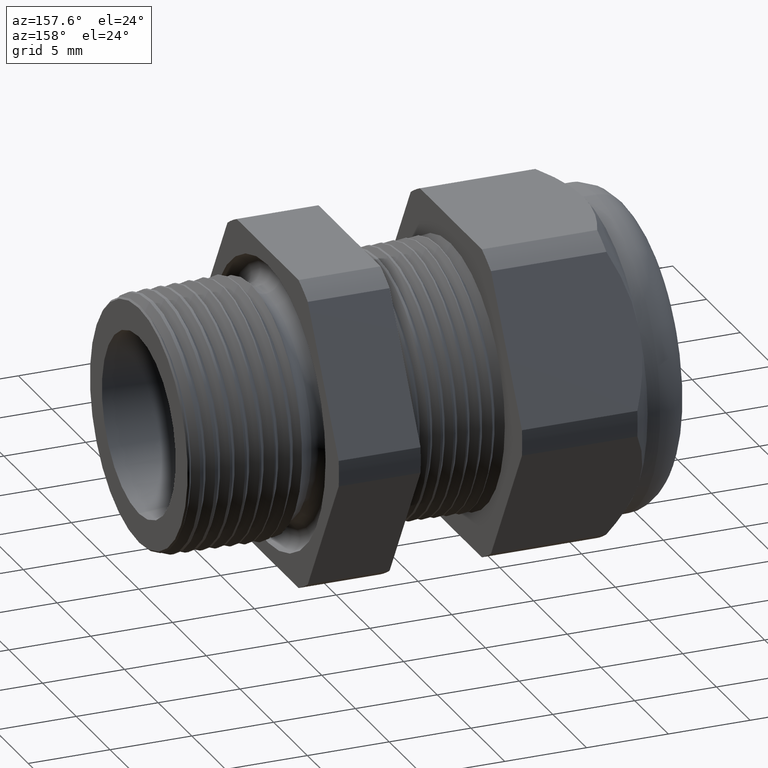
[diagram: clean part render]
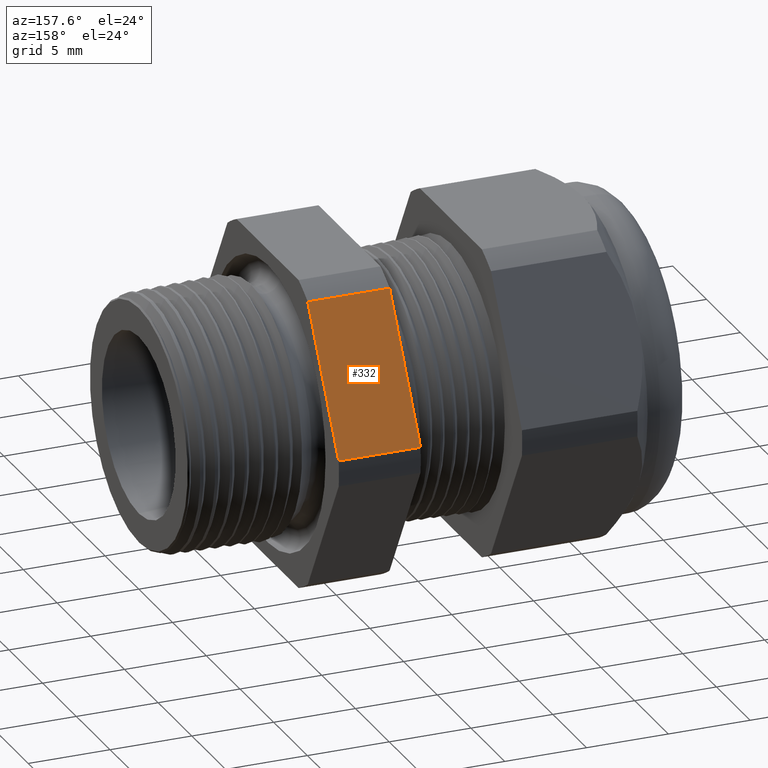
[diagram: same view with one face highlighted and labeled with its STEP entity id]
A machine part, auxiliary view. The second image highlights one B-rep face of the part: STEP entity #332.
In plain terms, the highlighted planar face has unit normal (0, 0.866, 0.5).
Its self-contained STEP definition (entity closure, byte-faithful):
#275 = EDGE_CURVE ( 'NONE', #4284, #276, #1935, .T. ) ;
#276 = VERTEX_POINT ( 'NONE', #1931 ) ;
#332 = ADVANCED_FACE ( 'NONE', ( #2038 ), #2037, .T. ) ;
#333 = EDGE_LOOP ( 'NONE', ( #334, #335, #336, #339 ) ) ;
#334 = ORIENTED_EDGE ( 'NONE', *, *, #275, .F. ) ;
#335 = ORIENTED_EDGE ( 'NONE', *, *, #4287, .F. ) ;
#336 = ORIENTED_EDGE ( 'NONE', *, *, #337, .T. ) ;
#337 = EDGE_CURVE ( 'NONE', #4276, #338, #2032, .T. ) ;
#338 = VERTEX_POINT ( 'NONE', #2028 ) ;
#339 = ORIENTED_EDGE ( 'NONE', *, *, #340, .F. ) ;
#340 = EDGE_CURVE ( 'NONE', #276, #338, #2027, .T. ) ;
#1931 = CARTESIAN_POINT ( 'NONE',  ( -0.5068503937007874400, 0.2344281053908206000, 0.3439586107409877100 ) ) ;
#1932 = DIRECTION ( 'NONE',  ( -1.000000000000000000, 0.0000000000000000000, 0.0000000000000000000 ) ) ;
#1933 = VECTOR ( 'NONE', #1932, 39.37007874015748100 ) ;
#1934 = CARTESIAN_POINT ( 'NONE',  ( 0.0000000000000000000, 0.2344281053908206000, 0.3439586107409877100 ) ) ;
#1935 = LINE ( 'NONE', #1934, #1933 ) ;
#2024 = DIRECTION ( 'NONE',  ( 0.0000000000000000000, 0.4999999999999998300, -0.8660254037844386000 ) ) ;
#2025 = VECTOR ( 'NONE', #2024, 39.37007874015748900 ) ;
#2026 = CARTESIAN_POINT ( 'NONE',  ( -0.5068503937007874400, 0.5122595264191646100, -0.1372595264191644500 ) ) ;
#2027 = LINE ( 'NONE', #2026, #2025 ) ;
#2028 = CARTESIAN_POINT ( 'NONE',  ( -0.5068503937007874400, 0.4150909474475088000, 0.03104138925901233200 ) ) ;
#2029 = DIRECTION ( 'NONE',  ( -1.000000000000000000, 0.0000000000000000000, 0.0000000000000000000 ) ) ;
#2030 = VECTOR ( 'NONE', #2029, 39.37007874015748100 ) ;
#2031 = CARTESIAN_POINT ( 'NONE',  ( 0.0000000000000000000, 0.4150909474475088000, 0.03104138925901233200 ) ) ;
#2032 = LINE ( 'NONE', #2031, #2030 ) ;
#2033 = DIRECTION ( 'NONE',  ( 0.0000000000000000000, -0.4999999999999998300, 0.8660254037844386000 ) ) ;
#2034 = DIRECTION ( 'NONE',  ( 0.0000000000000000000, 0.8660254037844387100, 0.4999999999999998900 ) ) ;
#2035 = CARTESIAN_POINT ( 'NONE',  ( 0.0000000000000000000, 0.2344281053908206000, 0.3439586107409877100 ) ) ;
#2036 = AXIS2_PLACEMENT_3D ( 'NONE', #2035, #2034, #2033 ) ;
#2037 = PLANE ( 'NONE',  #2036 ) ;
#2038 = FACE_OUTER_BOUND ( 'NONE', #333, .T. ) ;
#4016 = CARTESIAN_POINT ( 'NONE',  ( -0.3100000000000000000, 0.4150909474475088000, 0.03104138925901233200 ) ) ;
#4049 = DIRECTION ( 'NONE',  ( 0.0000000000000000000, -0.4999999999999998300, 0.8660254037844386000 ) ) ;
#4050 = VECTOR ( 'NONE', #4049, 39.37007874015748900 ) ;
#4051 = CARTESIAN_POINT ( 'NONE',  ( -0.3100000000000000000, 0.5122595264191646100, -0.1372595264191644500 ) ) ;
#4052 = LINE ( 'NONE', #4051, #4050 ) ;
#4058 = CARTESIAN_POINT ( 'NONE',  ( -0.3100000000000000000, 0.2344281053908206000, 0.3439586107409877100 ) ) ;
#4276 = VERTEX_POINT ( 'NONE', #4016 ) ;
#4284 = VERTEX_POINT ( 'NONE', #4058 ) ;
#4287 = EDGE_CURVE ( 'NONE', #4276, #4284, #4052, .T. ) ;